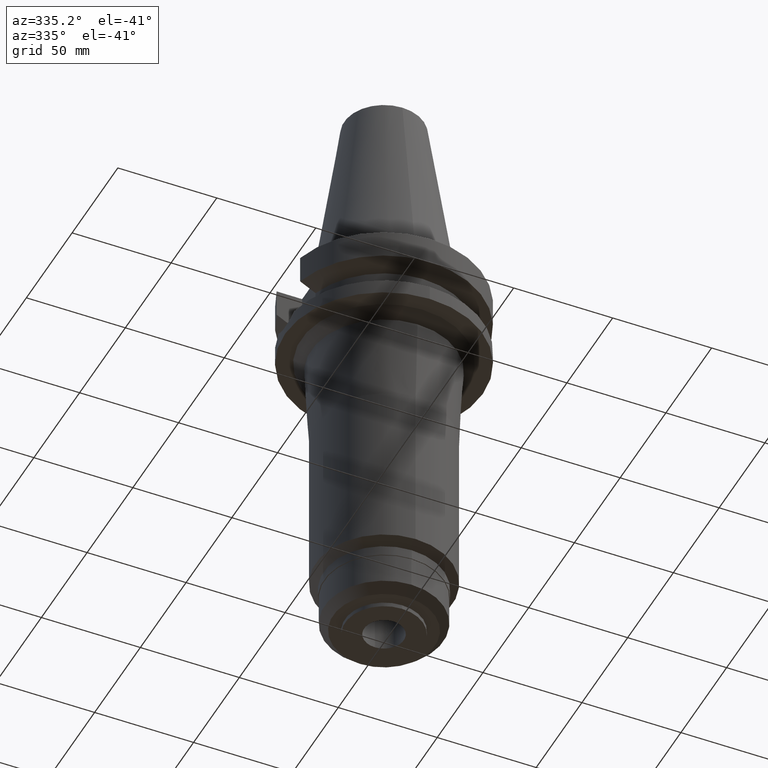
[diagram: clean part render]
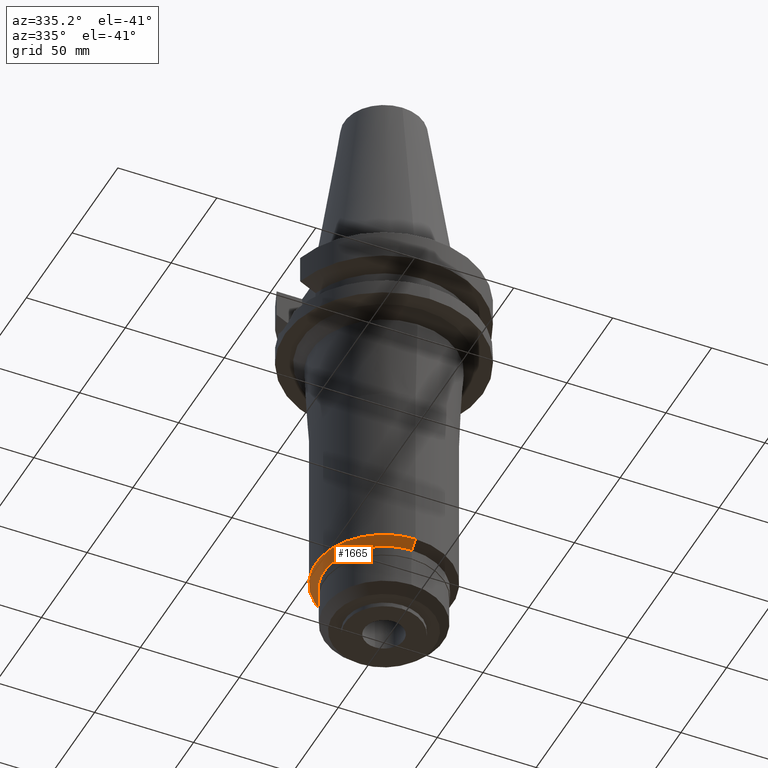
[diagram: same view with one face highlighted and labeled with its STEP entity id]
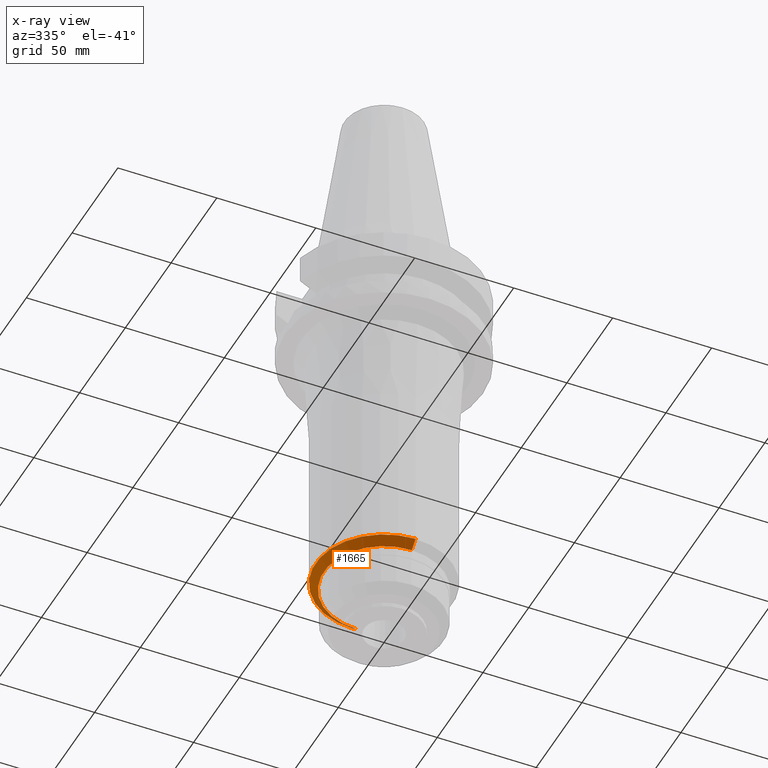
[diagram: x-ray of the same camera — body ghosted, the highlighted face saturated]
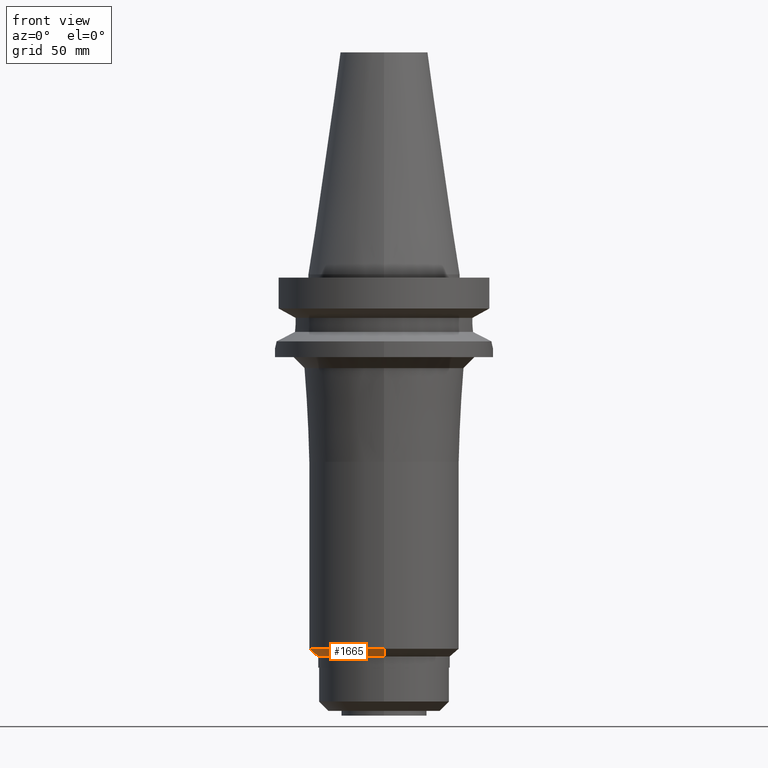
[diagram: same view with one face highlighted and labeled with its STEP entity id]
A machine part, auxiliary view. The second image highlights one B-rep face of the part: STEP entity #1665.
The next image is the same camera in x-ray: the body ghosted, the highlighted face saturated — about 2% of this face is hidden behind the body in this view.
A second angle (front view) of the same face is appended — the face is thin or edge-on in the first view.
In plain terms, the highlighted conical surface has half-angle 49.4 deg.
Its self-contained STEP definition (entity closure, byte-faithful):
#368=CARTESIAN_POINT('',(0.E0,0.E0,-1.717E2));
#369=DIRECTION('',(0.E0,0.E0,1.E0));
#370=DIRECTION('',(0.E0,1.E0,0.E0));
#371=AXIS2_PLACEMENT_3D('',#368,#369,#370);
#376=DIRECTION('',(0.E0,7.592713073331E-1,-6.507742172679E-1));
#377=VECTOR('',#376,5.465766926695E0);
#378=CARTESIAN_POINT('',(0.E0,-3.449999999999E1,-1.717E2));
#379=LINE('',#378,#377);
#383=CARTESIAN_POINT('',(0.E0,0.E0,-1.752569801935E2));
#384=DIRECTION('',(0.E0,0.E0,-1.E0));
#385=DIRECTION('',(0.E0,-1.E0,0.E0));
#386=AXIS2_PLACEMENT_3D('',#383,#384,#385);
#391=DIRECTION('',(0.E0,-7.592713073331E-1,-6.507742172679E-1));
#392=VECTOR('',#391,5.465766926695E0);
#393=CARTESIAN_POINT('',(0.E0,3.449999999999E1,-1.717E2));
#394=LINE('',#393,#392);
#1188=CARTESIAN_POINT('',(0.E0,3.034999999998E1,-1.752569801935E2));
#1189=VERTEX_POINT('',#1188);
#1190=CARTESIAN_POINT('',(0.E0,-3.034999999998E1,-1.752569801935E2));
#1191=VERTEX_POINT('',#1190);
#1192=CARTESIAN_POINT('',(0.E0,3.449999999999E1,-1.717E2));
#1193=VERTEX_POINT('',#1192);
#1194=CARTESIAN_POINT('',(0.E0,-3.449999999998E1,-1.717E2));
#1195=VERTEX_POINT('',#1194);
#1651=CARTESIAN_POINT('',(0.E0,0.E0,-1.734784900967E2));
#1652=DIRECTION('',(0.E0,0.E0,1.E0));
#1653=DIRECTION('',(0.E0,1.E0,0.E0));
#1654=AXIS2_PLACEMENT_3D('',#1651,#1652,#1653);
#1655=CONICAL_SURFACE('',#1654,3.242499999998E1,4.94E1);
#1657=ORIENTED_EDGE('',*,*,#1656,.F.);
#1659=ORIENTED_EDGE('',*,*,#1658,.T.);
#1661=ORIENTED_EDGE('',*,*,#1660,.T.);
#1662=ORIENTED_EDGE('',*,*,#1644,.T.);
#1663=EDGE_LOOP('',(#1657,#1659,#1661,#1662));
#1664=FACE_OUTER_BOUND('',#1663,.F.);
#372=CIRCLE('',#371,3.449999999998E1);
#387=CIRCLE('',#386,3.034999999997E1);
#1644=EDGE_CURVE('',#1191,#1189,#387,.T.);
#1656=EDGE_CURVE('',#1193,#1189,#394,.T.);
#1658=EDGE_CURVE('',#1193,#1195,#372,.T.);
#1660=EDGE_CURVE('',#1195,#1191,#379,.T.);
#1665=ADVANCED_FACE('',(#1664),#1655,.T.);